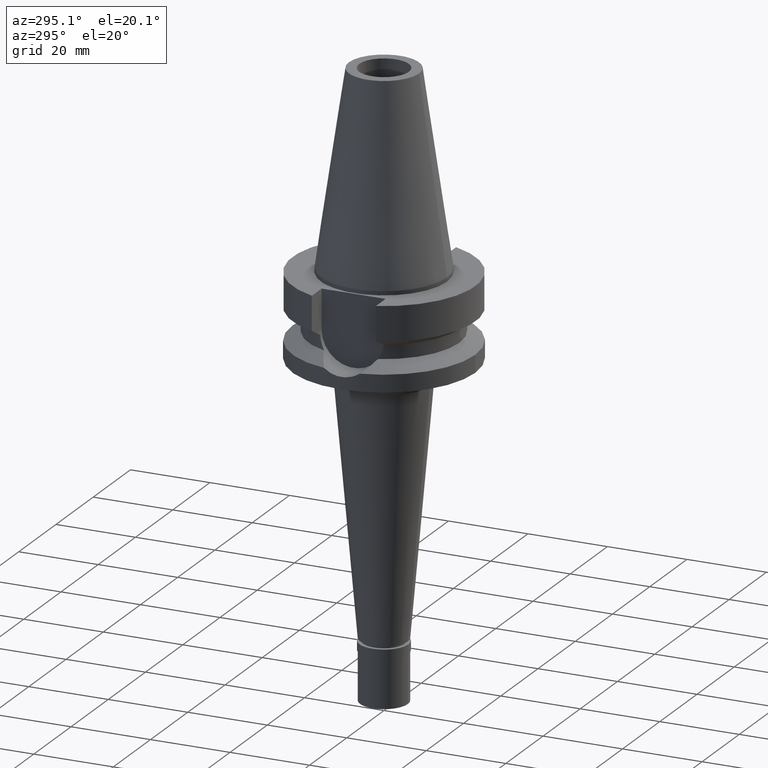
[diagram: clean part render]
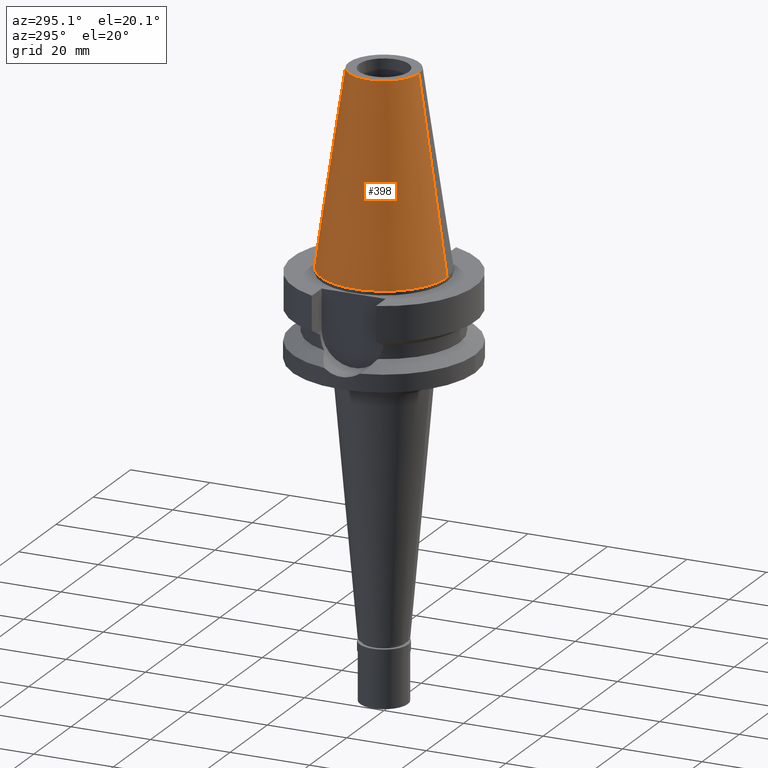
[diagram: same view with one face highlighted and labeled with its STEP entity id]
A machine part, auxiliary view. The second image highlights one B-rep face of the part: STEP entity #398.
In plain terms, the highlighted conical surface has half-angle 8.297 deg.
Its self-contained STEP definition (entity closure, byte-faithful):
#50 = CARTESIAN_POINT ( 'NONE',  ( 0.0000000000000000000, 1.521011324540999938E-14, -3.694822225953000089E-13 ) ) ;
#90 = VERTEX_POINT ( 'NONE', #450 ) ;
#134 = DIRECTION ( 'NONE',  ( 0.0000000000000000000, 0.0000000000000000000, -1.000000000000000000 ) ) ;
#232 = CONICAL_SURFACE ( 'NONE', #1903, 12.34589586639000025, 0.1448099680379422438 ) ;
#297 = DIRECTION ( 'NONE',  ( 0.0000000000000000000, 0.0000000000000000000, -1.000000000000000000 ) ) ;
#398 = ADVANCED_FACE ( 'NONE', ( #2180 ), #232, .T. ) ;
#450 = CARTESIAN_POINT ( 'NONE',  ( 0.0000000000000000000, -8.816791732783000768, 48.39999999999999858 ) ) ;
#494 = ORIENTED_EDGE ( 'NONE', *, *, #2904, .F. ) ;
#540 = LINE ( 'NONE', #2136, #2496 ) ;
#672 = DIRECTION ( 'NONE',  ( 0.0000000000000000000, -1.000000000000000000, 0.0000000000000000000 ) ) ;
#841 = AXIS2_PLACEMENT_3D ( 'NONE', #1123, #297, #2095 ) ;
#989 = ORIENTED_EDGE ( 'NONE', *, *, #2527, .F. ) ;
#1112 = CARTESIAN_POINT ( 'NONE',  ( 0.0000000000000000000, 15.87500000000000000, -1.598721155459999993E-13 ) ) ;
#1123 = CARTESIAN_POINT ( 'NONE',  ( 0.0000000000000000000, 1.521011324540999938E-14, 48.39999999999999858 ) ) ;
#1362 = ORIENTED_EDGE ( 'NONE', *, *, #1402, .T. ) ;
#1402 = EDGE_CURVE ( 'NONE', #2800, #2121, #540, .T. ) ;
#1423 = DIRECTION ( 'NONE',  ( 0.0000000000000000000, -0.1443043893539925626, -0.9895333461855498891 ) ) ;
#1850 = EDGE_LOOP ( 'NONE', ( #494, #989, #2784, #1362 ) ) ;
#1903 = AXIS2_PLACEMENT_3D ( 'NONE', #2856, #134, #2654 ) ;
#1909 = LINE ( 'NONE', #2823, #2280 ) ;
#2095 = DIRECTION ( 'NONE',  ( 0.0000000000000000000, -1.000000000000000000, 0.0000000000000000000 ) ) ;
#2109 = CARTESIAN_POINT ( 'NONE',  ( 0.0000000000000000000, 8.816791732783000768, 48.39999999999999858 ) ) ;
#2121 = VERTEX_POINT ( 'NONE', #1112 ) ;
#2125 = CIRCLE ( 'NONE', #841, 8.816791732783000768 ) ;
#2136 = CARTESIAN_POINT ( 'NONE',  ( 0.0000000000000000000, 8.816791732783000768, 48.39999999999999858 ) ) ;
#2180 = FACE_OUTER_BOUND ( 'NONE', #1850, .T. ) ;
#2280 = VECTOR ( 'NONE', #1423, 1000.000000000000114 ) ;
#2365 = AXIS2_PLACEMENT_3D ( 'NONE', #50, #2716, #672 ) ;
#2425 = DIRECTION ( 'NONE',  ( 0.0000000000000000000, 0.1443043893539925626, -0.9895333461855498891 ) ) ;
#2445 = CARTESIAN_POINT ( 'NONE',  ( 0.0000000000000000000, -15.87500000000000000, -1.598721155459999993E-13 ) ) ;
#2496 = VECTOR ( 'NONE', #2425, 1000.000000000000114 ) ;
#2527 = EDGE_CURVE ( 'NONE', #90, #2631, #1909, .T. ) ;
#2631 = VERTEX_POINT ( 'NONE', #2445 ) ;
#2654 = DIRECTION ( 'NONE',  ( 0.0000000000000000000, -1.000000000000000000, 0.0000000000000000000 ) ) ;
#2716 = DIRECTION ( 'NONE',  ( 0.0000000000000000000, 0.0000000000000000000, -1.000000000000000000 ) ) ;
#2784 = ORIENTED_EDGE ( 'NONE', *, *, #2899, .T. ) ;
#2800 = VERTEX_POINT ( 'NONE', #2109 ) ;
#2823 = CARTESIAN_POINT ( 'NONE',  ( 0.0000000000000000000, -8.816791732783000768, 48.39999999999999858 ) ) ;
#2856 = CARTESIAN_POINT ( 'NONE',  ( 0.0000000000000000000, 1.521011324540999938E-14, 24.19999999999999929 ) ) ;
#2896 = CIRCLE ( 'NONE', #2365, 15.87500000000000000 ) ;
#2899 = EDGE_CURVE ( 'NONE', #90, #2800, #2125, .T. ) ;
#2904 = EDGE_CURVE ( 'NONE', #2631, #2121, #2896, .T. ) ;